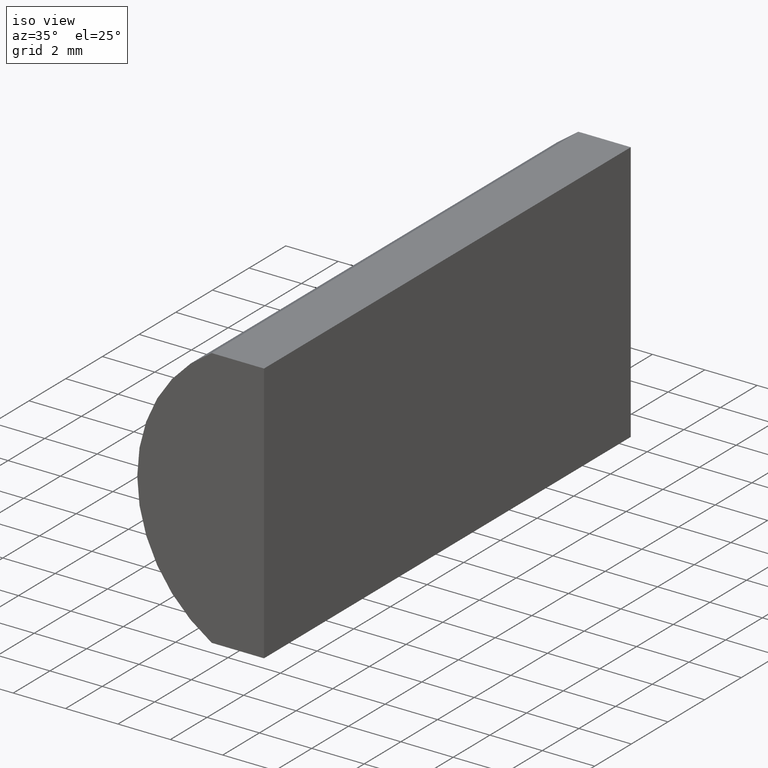
[diagram: clean part render]
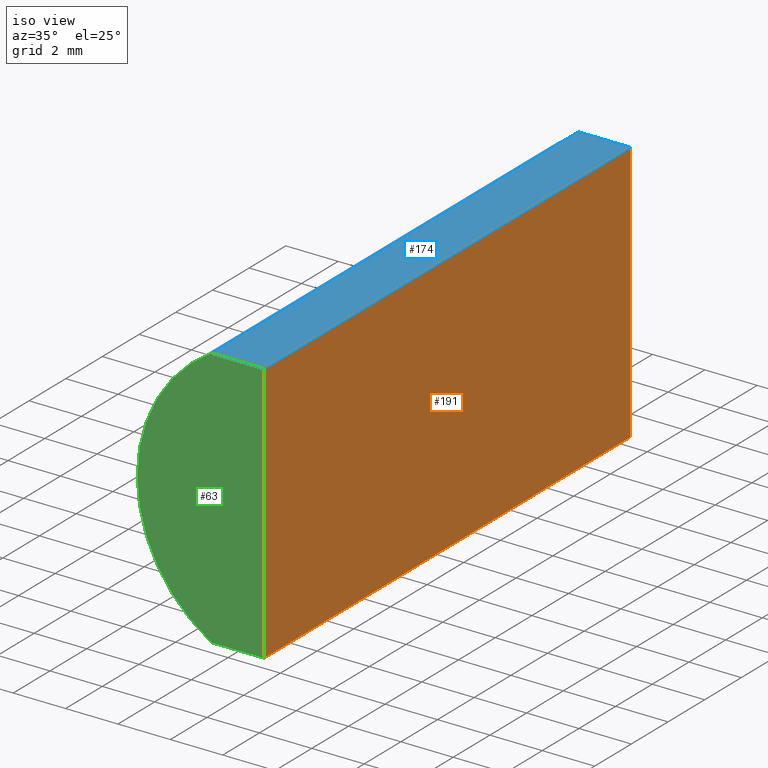
[diagram: same view with three faces highlighted in distinct colors, each labeled with its STEP entity id]
A machine part, iso view with three faces highlighted in distinct colors.
Their STEP definitions:

[orange] entity #191 — the highlighted planar face has unit normal (-1, 0, 0).
#7 = VERTEX_POINT ( 'NONE', #202 ) ;
#17 = EDGE_CURVE ( 'NONE', #7, #19, #51, .T. ) ;
#18 = LINE ( 'NONE', #23, #172 ) ;
#19 = VERTEX_POINT ( 'NONE', #170 ) ;
#20 = ORIENTED_EDGE ( 'NONE', *, *, #44, .F. ) ;
#23 = CARTESIAN_POINT ( 'NONE',  ( 3.375204334851278400, 20.00000000000000000, -5.000000000000083500 ) ) ;
#24 = AXIS2_PLACEMENT_3D ( 'NONE', #165, #69, #163 ) ;
#27 = EDGE_CURVE ( 'NONE', #35, #7, #164, .T. ) ;
#31 = VECTOR ( 'NONE', #74, 1000.000000000000000 ) ;
#35 = VERTEX_POINT ( 'NONE', #184 ) ;
#38 = VECTOR ( 'NONE', #143, 1000.000000000000000 ) ;
#42 = CARTESIAN_POINT ( 'NONE',  ( 3.375204334851278400, 20.00000000000000000, -5.000000000000083500 ) ) ;
#44 = EDGE_CURVE ( 'NONE', #35, #144, #127, .T. ) ;
#51 = LINE ( 'NONE', #185, #38 ) ;
#55 = ORIENTED_EDGE ( 'NONE', *, *, #27, .T. ) ;
#69 = DIRECTION ( 'NONE',  ( -1.000000000000000000, 0.0000000000000000000, 0.0000000000000000000 ) ) ;
#74 = DIRECTION ( 'NONE',  ( -0.0000000000000000000, -0.0000000000000000000, -1.000000000000000000 ) ) ;
#75 = ORIENTED_EDGE ( 'NONE', *, *, #200, .F. ) ;
#100 = CARTESIAN_POINT ( 'NONE',  ( 3.375204334851278400, 20.00000000000000000, -5.000000000000083500 ) ) ;
#104 = DIRECTION ( 'NONE',  ( -0.0000000000000000000, -1.000000000000000000, -0.0000000000000000000 ) ) ;
#107 = FACE_OUTER_BOUND ( 'NONE', #197, .T. ) ;
#109 = ORIENTED_EDGE ( 'NONE', *, *, #17, .T. ) ;
#116 = DIRECTION ( 'NONE',  ( -0.0000000000000000000, -1.000000000000000000, -0.0000000000000000000 ) ) ;
#125 = CARTESIAN_POINT ( 'NONE',  ( 3.375204334851278400, 20.00000000000000000, 5.000000000000000000 ) ) ;
#127 = LINE ( 'NONE', #42, #31 ) ;
#130 = VECTOR ( 'NONE', #104, 1000.000000000000000 ) ;
#143 = DIRECTION ( 'NONE',  ( -0.0000000000000000000, -0.0000000000000000000, -1.000000000000000000 ) ) ;
#144 = VERTEX_POINT ( 'NONE', #100 ) ;
#163 = DIRECTION ( 'NONE',  ( 0.0000000000000000000, 0.0000000000000000000, 1.000000000000000000 ) ) ;
#164 = LINE ( 'NONE', #125, #130 ) ;
#165 = CARTESIAN_POINT ( 'NONE',  ( 3.375204334851278400, 20.00000000000000000, -5.000000000000083500 ) ) ;
#170 = CARTESIAN_POINT ( 'NONE',  ( 3.375204334851278400, 0.0000000000000000000, -5.000000000000083500 ) ) ;
#172 = VECTOR ( 'NONE', #116, 1000.000000000000000 ) ;
#184 = CARTESIAN_POINT ( 'NONE',  ( 3.375204334851278400, 20.00000000000000000, 5.000000000000000000 ) ) ;
#185 = CARTESIAN_POINT ( 'NONE',  ( 3.375204334851278400, 0.0000000000000000000, -5.000000000000083500 ) ) ;
#191 = ADVANCED_FACE ( 'NONE', ( #107 ), #195, .F. ) ;
#195 = PLANE ( 'NONE',  #24 ) ;
#197 = EDGE_LOOP ( 'NONE', ( #109, #75, #20, #55 ) ) ;
#200 = EDGE_CURVE ( 'NONE', #144, #19, #18, .T. ) ;
#202 = CARTESIAN_POINT ( 'NONE',  ( 3.375204334851278400, 0.0000000000000000000, 5.000000000000000000 ) ) ;

[blue] entity #174 — the highlighted planar face has unit normal (0, 0, -1).
#7 = VERTEX_POINT ( 'NONE', #202 ) ;
#8 = DIRECTION ( 'NONE',  ( 0.0000000000000000000, 0.0000000000000000000, -1.000000000000000000 ) ) ;
#10 = CARTESIAN_POINT ( 'NONE',  ( 1.376546919168830700, 20.00000000000000000, 5.000000000000000000 ) ) ;
#13 = LINE ( 'NONE', #101, #135 ) ;
#22 = ORIENTED_EDGE ( 'NONE', *, *, #59, .T. ) ;
#27 = EDGE_CURVE ( 'NONE', #35, #7, #164, .T. ) ;
#29 = CARTESIAN_POINT ( 'NONE',  ( 1.376546919168830700, 20.00000000000000000, 5.000000000000000000 ) ) ;
#32 = VERTEX_POINT ( 'NONE', #29 ) ;
#35 = VERTEX_POINT ( 'NONE', #184 ) ;
#46 = EDGE_LOOP ( 'NONE', ( #22, #114, #166, #61 ) ) ;
#50 = LINE ( 'NONE', #10, #53 ) ;
#53 = VECTOR ( 'NONE', #121, 1000.000000000000000 ) ;
#59 = EDGE_CURVE ( 'NONE', #129, #7, #76, .T. ) ;
#61 = ORIENTED_EDGE ( 'NONE', *, *, #78, .T. ) ;
#64 = EDGE_CURVE ( 'NONE', #32, #35, #13, .T. ) ;
#73 = DIRECTION ( 'NONE',  ( 1.000000000000000000, 0.0000000000000000000, 0.0000000000000000000 ) ) ;
#76 = LINE ( 'NONE', #168, #190 ) ;
#78 = EDGE_CURVE ( 'NONE', #32, #129, #50, .T. ) ;
#82 = CARTESIAN_POINT ( 'NONE',  ( 1.376546919168830700, 0.0000000000000000000, 5.000000000000000000 ) ) ;
#99 = DIRECTION ( 'NONE',  ( -1.000000000000000000, 0.0000000000000000000, -0.0000000000000000000 ) ) ;
#101 = CARTESIAN_POINT ( 'NONE',  ( 1.376546919168830700, 20.00000000000000000, 5.000000000000000000 ) ) ;
#104 = DIRECTION ( 'NONE',  ( -0.0000000000000000000, -1.000000000000000000, -0.0000000000000000000 ) ) ;
#114 = ORIENTED_EDGE ( 'NONE', *, *, #27, .F. ) ;
#118 = FACE_OUTER_BOUND ( 'NONE', #46, .T. ) ;
#119 = PLANE ( 'NONE',  #204 ) ;
#121 = DIRECTION ( 'NONE',  ( -0.0000000000000000000, -1.000000000000000000, -0.0000000000000000000 ) ) ;
#125 = CARTESIAN_POINT ( 'NONE',  ( 3.375204334851278400, 20.00000000000000000, 5.000000000000000000 ) ) ;
#129 = VERTEX_POINT ( 'NONE', #82 ) ;
#130 = VECTOR ( 'NONE', #104, 1000.000000000000000 ) ;
#135 = VECTOR ( 'NONE', #198, 1000.000000000000000 ) ;
#137 = CARTESIAN_POINT ( 'NONE',  ( 1.376546919168830700, 20.00000000000000000, 5.000000000000000000 ) ) ;
#164 = LINE ( 'NONE', #125, #130 ) ;
#166 = ORIENTED_EDGE ( 'NONE', *, *, #64, .F. ) ;
#168 = CARTESIAN_POINT ( 'NONE',  ( 1.376546919168830700, 0.0000000000000000000, 5.000000000000000000 ) ) ;
#174 = ADVANCED_FACE ( 'NONE', ( #118 ), #119, .F. ) ;
#184 = CARTESIAN_POINT ( 'NONE',  ( 3.375204334851278400, 20.00000000000000000, 5.000000000000000000 ) ) ;
#190 = VECTOR ( 'NONE', #73, 1000.000000000000000 ) ;
#198 = DIRECTION ( 'NONE',  ( 1.000000000000000000, 0.0000000000000000000, 0.0000000000000000000 ) ) ;
#202 = CARTESIAN_POINT ( 'NONE',  ( 3.375204334851278400, 0.0000000000000000000, 5.000000000000000000 ) ) ;
#204 = AXIS2_PLACEMENT_3D ( 'NONE', #137, #8, #99 ) ;

[green] entity #63 — the highlighted planar face has unit normal (0, 1, 0).
#1 = ORIENTED_EDGE ( 'NONE', *, *, #59, .F. ) ;
#5 = FACE_OUTER_BOUND ( 'NONE', #88, .T. ) ;
#7 = VERTEX_POINT ( 'NONE', #202 ) ;
#17 = EDGE_CURVE ( 'NONE', #7, #19, #51, .T. ) ;
#19 = VERTEX_POINT ( 'NONE', #170 ) ;
#28 = DIRECTION ( 'NONE',  ( 0.0000000000000000000, 1.000000000000000000, 0.0000000000000000000 ) ) ;
#30 = VERTEX_POINT ( 'NONE', #201 ) ;
#34 = VECTOR ( 'NONE', #39, 1000.000000000000000 ) ;
#36 = EDGE_CURVE ( 'NONE', #30, #129, #47, .T. ) ;
#38 = VECTOR ( 'NONE', #143, 1000.000000000000000 ) ;
#39 = DIRECTION ( 'NONE',  ( -1.000000000000000000, -0.0000000000000000000, 4.166133034783005000E-014 ) ) ;
#41 = DIRECTION ( 'NONE',  ( 0.0000000000000000000, -0.0000000000000000000, 1.000000000000000000 ) ) ;
#47 = CIRCLE ( 'NONE', #108, 5.819999999999996700 ) ;
#51 = LINE ( 'NONE', #185, #38 ) ;
#58 = PLANE ( 'NONE',  #147 ) ;
#59 = EDGE_CURVE ( 'NONE', #129, #7, #76, .T. ) ;
#63 = ADVANCED_FACE ( 'NONE', ( #5 ), #58, .F. ) ;
#73 = DIRECTION ( 'NONE',  ( 1.000000000000000000, 0.0000000000000000000, 0.0000000000000000000 ) ) ;
#76 = LINE ( 'NONE', #168, #190 ) ;
#82 = CARTESIAN_POINT ( 'NONE',  ( 1.376546919168830700, 0.0000000000000000000, 5.000000000000000000 ) ) ;
#88 = EDGE_LOOP ( 'NONE', ( #131, #187, #98, #1 ) ) ;
#98 = ORIENTED_EDGE ( 'NONE', *, *, #17, .F. ) ;
#108 = AXIS2_PLACEMENT_3D ( 'NONE', #141, #28, #123 ) ;
#120 = CARTESIAN_POINT ( 'NONE',  ( 1.376546919168830700, 0.0000000000000000000, -5.000000000000000000 ) ) ;
#123 = DIRECTION ( 'NONE',  ( 0.0000000000000000000, 0.0000000000000000000, 1.000000000000000000 ) ) ;
#129 = VERTEX_POINT ( 'NONE', #82 ) ;
#131 = ORIENTED_EDGE ( 'NONE', *, *, #36, .F. ) ;
#140 = CARTESIAN_POINT ( 'NONE',  ( 4.355204334851265500, 0.0000000000000000000, 4.286263797015675000E-017 ) ) ;
#141 = CARTESIAN_POINT ( 'NONE',  ( 4.355204334851265500, 0.0000000000000000000, 4.286263797015675000E-017 ) ) ;
#143 = DIRECTION ( 'NONE',  ( -0.0000000000000000000, -0.0000000000000000000, -1.000000000000000000 ) ) ;
#145 = EDGE_CURVE ( 'NONE', #19, #30, #159, .T. ) ;
#147 = AXIS2_PLACEMENT_3D ( 'NONE', #140, #154, #41 ) ;
#154 = DIRECTION ( 'NONE',  ( 0.0000000000000000000, 1.000000000000000000, 0.0000000000000000000 ) ) ;
#159 = LINE ( 'NONE', #120, #34 ) ;
#168 = CARTESIAN_POINT ( 'NONE',  ( 1.376546919168830700, 0.0000000000000000000, 5.000000000000000000 ) ) ;
#170 = CARTESIAN_POINT ( 'NONE',  ( 3.375204334851278400, 0.0000000000000000000, -5.000000000000083500 ) ) ;
#185 = CARTESIAN_POINT ( 'NONE',  ( 3.375204334851278400, 0.0000000000000000000, -5.000000000000083500 ) ) ;
#187 = ORIENTED_EDGE ( 'NONE', *, *, #145, .F. ) ;
#190 = VECTOR ( 'NONE', #73, 1000.000000000000000 ) ;
#201 = CARTESIAN_POINT ( 'NONE',  ( 1.376546919168830700, 0.0000000000000000000, -5.000000000000000000 ) ) ;
#202 = CARTESIAN_POINT ( 'NONE',  ( 3.375204334851278400, 0.0000000000000000000, 5.000000000000000000 ) ) ;